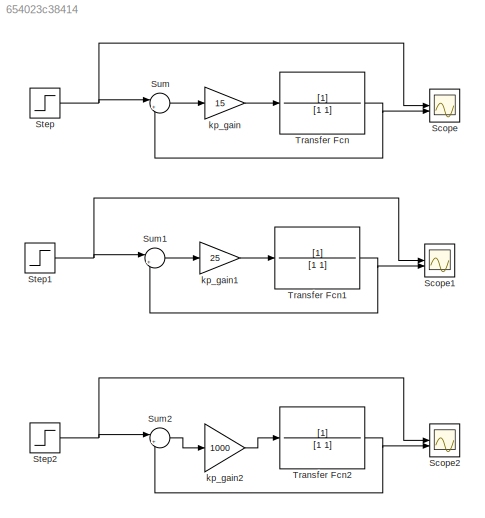
MODEL slx_654023c38414
KIND model
CONFIG AbsTol = auto
CONFIG EnableMultiTasking = off
CONFIG FixedStep = auto
CONFIG MaxStep = 1e-3
CONFIG MinStep = auto
CONFIG RelTol = auto
CONFIG SampleTimeConstraint = Unconstrained
CONFIG SolverName = VariableStepAuto
CONFIG StartTime = 0.0
CONFIG StopTime = 10.0
BLOCK [Scope] Scope
  Floating = off
  NumInputPorts = 2
  ScopeSpecificationString = Simulink.scopes.TimeScopeBlockCfg('CurrentConfiguration', extmgr.ConfigurationSet(extmgr.Configuration('Core','General UI',true),extmgr.Configuration('Core','Source UI',true),extmgr.Configuration('Sources','WiredSimulink',true),extmgr.Configuration('Visuals','Time Domain',true,'SerializedDisplays',{struct('MinYLimReal','-0.16926','MaxYLimReal','1.52333','YLabelReal','','MinYLimMag','0.00000','MaxY...<+1398ch>
BLOCK [Scope] Scope1
  Floating = off
  NumInputPorts = 2
  ScopeSpecificationString = Simulink.scopes.TimeScopeBlockCfg('CurrentConfiguration', extmgr.ConfigurationSet(extmgr.Configuration('Core','General UI',true),extmgr.Configuration('Core','Source UI',true),extmgr.Configuration('Sources','WiredSimulink',true,'DataLoggingVariableName','ScopeData1'),extmgr.Configuration('Visuals','Time Domain',true,'SerializedDisplays',{struct('MinYLimReal','-0.18431','MaxYLimReal','1.65882','YLab...<+1437ch>
BLOCK [Scope] Scope2
  Floating = off
  NumInputPorts = 2
  ScopeSpecificationString = Simulink.scopes.TimeScopeBlockCfg('CurrentConfiguration', extmgr.ConfigurationSet(extmgr.Configuration('Core','General UI',true),extmgr.Configuration('Core','Source UI',true),extmgr.Configuration('Sources','WiredSimulink',true,'DataLoggingVariableName','ScopeData2'),extmgr.Configuration('Visuals','Time Domain',true,'SerializedDisplays',{struct('MinYLimReal','-0.23793','MaxYLimReal','2.14141','YLab...<+1411ch>
BLOCK [Step] Step
  SampleTime = 0
BLOCK [Step] Step1
  SampleTime = 0
BLOCK [Step] Step2
  SampleTime = 0
BLOCK [Sum] Sum
  Inputs = |+-
BLOCK [Sum] Sum1
  Inputs = |+-
BLOCK [Sum] Sum2
  Inputs = |+-
BLOCK [TransferFcn] Transfer Fcn
BLOCK [TransferFcn] Transfer Fcn1
BLOCK [TransferFcn] Transfer Fcn2
BLOCK [Gain] kp_gain
  Gain = 15
BLOCK [Gain] kp_gain1
  Gain = 25
BLOCK [Gain] kp_gain2
  Gain = 1000
NET Step1:1 -> Scope1:1, Sum1:1
NET Step2:1 -> Scope2:1, Sum2:1
NET Step:1 -> Scope:1, Sum:1
LINE Sum1:1 -> kp_gain1:1
LINE Sum2:1 -> kp_gain2:1
LINE Sum:1 -> kp_gain:1
NET Transfer Fcn1:1 -> Scope1:2, Sum1:2
NET Transfer Fcn2:1 -> Scope2:2, Sum2:2
NET Transfer Fcn:1 -> Scope:2, Sum:2
LINE kp_gain1:1 -> Transfer Fcn1:1
LINE kp_gain2:1 -> Transfer Fcn2:1
LINE kp_gain:1 -> Transfer Fcn:1
note: NET lines group one-source signal fan-out (src -> all destinations, sorted); 1:1 wires keep LINE
